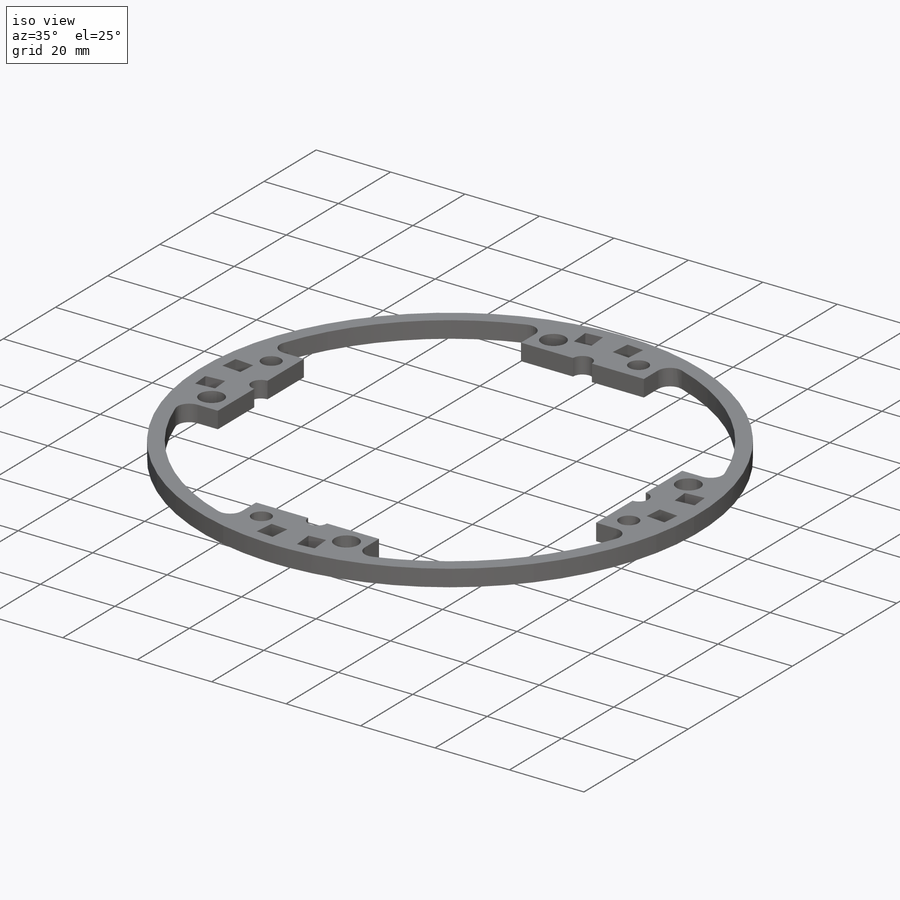
[diagram: iso view]
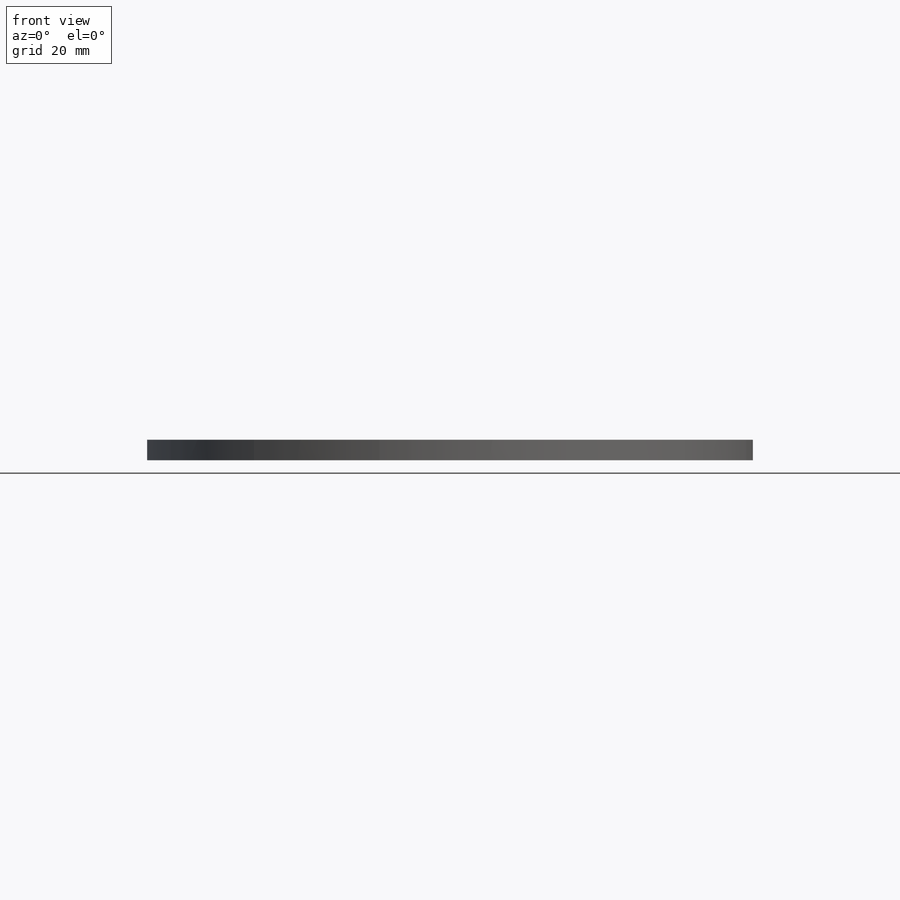
[diagram: front view]
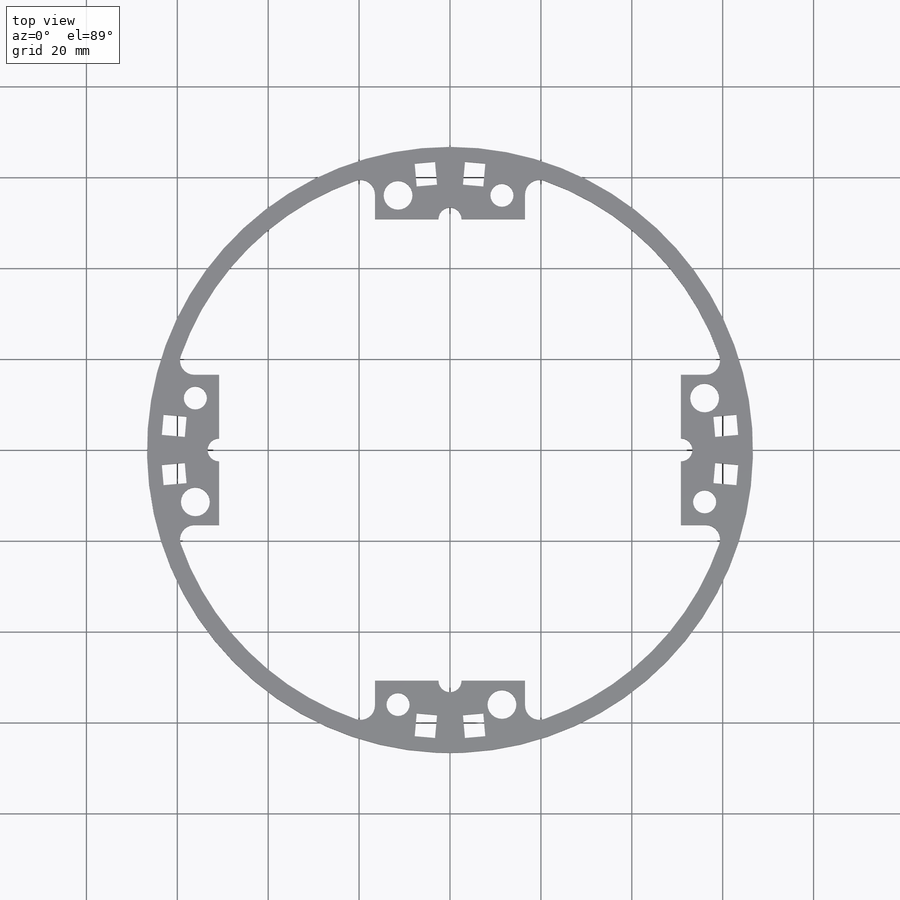
[diagram: top view]
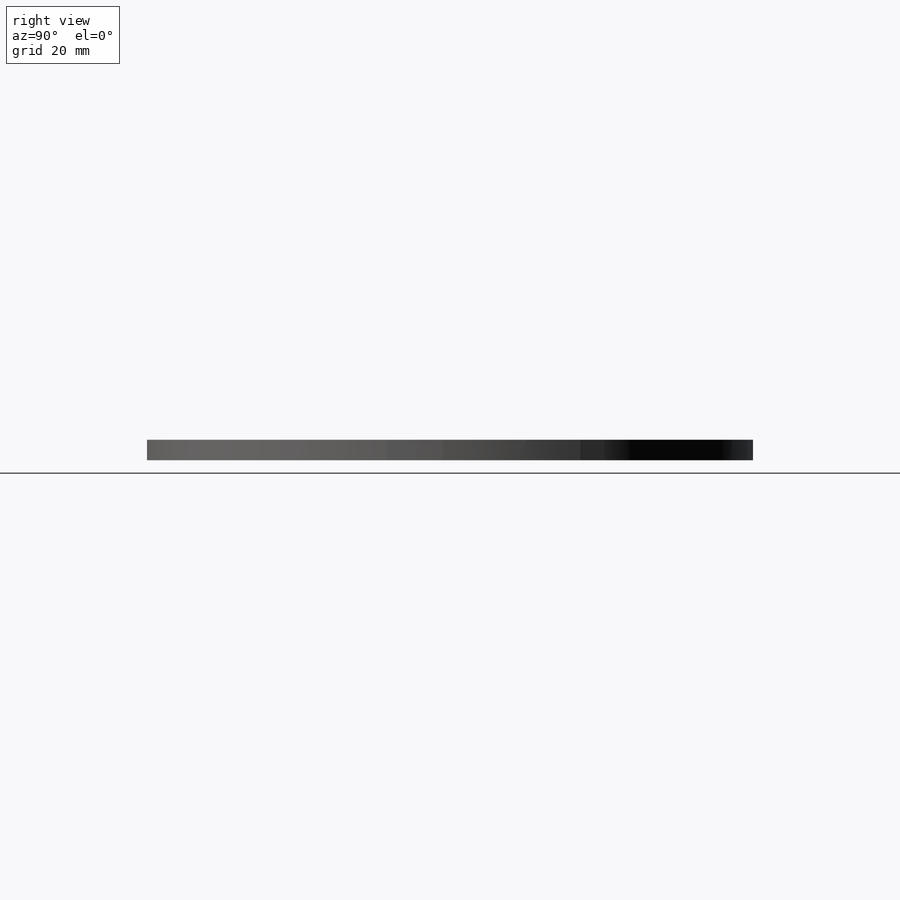
[diagram: right view]
SOLIDWORKS PART (.sldprt)
format: sldprt  version: not decoded by parser v0  size: 456,704 bytes
history: native  units: mm
features: sketch x6, cut_extrude x5, pattern_circular x4, material x1, extrude x1 (+12 scaffold rows collapsed)
feature tree (29):
  scaffold x12  (default folders/planes/origin — collapsed)
  material  "ABS PC"
  sketch  "Sketch1"  dims[c1.D1=133.35mm c1.D2=~58.834954mm c1.D5=3.175mm c2.D2=~3.90652mm c2.D3=16.51mm c2.D4=15.875mm]
  extrude  "Boss-Extrude1"  Depth=4.50088mm
  sketch  "Sketch2"  dims[c1.D1=66.675mm c2.D1=5.0deg c2.D2=3.175mm c2.D3=5.08mm c2.D4=~4.50088mm c2.D5=9.1813mm c3.D5=5.0deg]
  cut_extrude  "Cut-Extrude1"  Depth=4.50088mm
  pattern_circular  "CirPattern1"  Count=4 Angle=90deg
  sketch  "Sketch3"  dims[c1.D1=~88.744684mm c2.D1=60.0deg c2.D2=~101.502666mm c3.D2=30.0deg c3.D3=101.6mm]
  cut_extrude  "Cut-Extrude2"  [1 undecoded]
  sketch  "Sketch5"  dims[D1=2.54mm]
  cut_extrude  "Cut-Extrude3"  [1 undecoded]
  pattern_circular  "CirPattern2"  Count=4 Angle=90deg
  sketch  "Sketch6"  dims[D1=6.35mm D2=11.43mm D3=~56.033131mm]
  cut_extrude  "Cut-Extrude4"  [1 undecoded]
  pattern_circular  "CirPattern3"  Count=4 Angle=360deg
  sketch  "Sketch9"  dims[D1=5.08mm]
  cut_extrude  "Cut-Extrude5"  [1 undecoded]
  pattern_circular  "CirPattern4"  Count=4 Angle=90deg
decode coverage: 12 of 16 modeling features carry decoded parameters
note: ~ marks probable driven/reference dimensions
note: 4 parameter values undecoded
summary: no parameter record found for 4 features
note: suppression state not decoded; provenance and decode notes live in map.json
